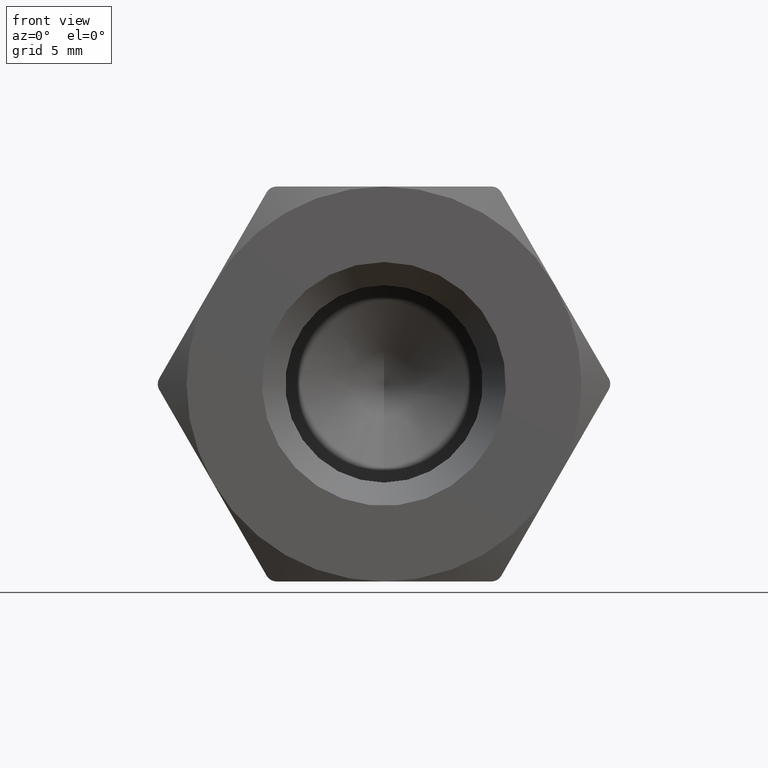
[diagram: clean part render]
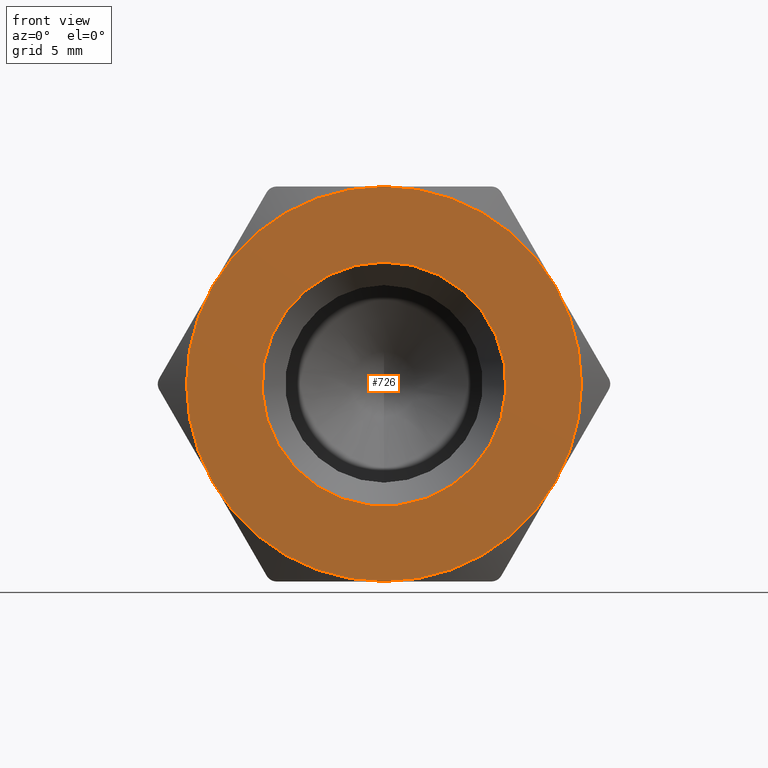
[diagram: same view with one face highlighted and labeled with its STEP entity id]
A machine part, front view. The second image highlights one B-rep face of the part: STEP entity #726.
In plain terms, the highlighted planar face has unit normal (0, 1, 0).
Its self-contained STEP definition (entity closure, byte-faithful):
#33 = CARTESIAN_POINT ( 'NONE',  ( 0.0000000000000000000, 0.0000000000000000000, 0.0000000000000000000 ) ) ;
#44 = CIRCLE ( 'NONE', #457, 8.500000000000000000 ) ;
#65 = CARTESIAN_POINT ( 'NONE',  ( -7.361215932167728400, 0.0000000000000000000, -4.250000000000000000 ) ) ;
#71 = CARTESIAN_POINT ( 'NONE',  ( 0.0000000000000000000, 0.0000000000000000000, 0.0000000000000000000 ) ) ;
#98 = DIRECTION ( 'NONE',  ( 0.0000000000000000000, 1.000000000000000000, 0.0000000000000000000 ) ) ;
#122 = CIRCLE ( 'NONE', #590, 8.500000000000000000 ) ;
#124 = ORIENTED_EDGE ( 'NONE', *, *, #1299, .F. ) ;
#137 = VERTEX_POINT ( 'NONE', #1050 ) ;
#159 = CARTESIAN_POINT ( 'NONE',  ( 0.0000000000000000000, 0.0000000000000000000, 8.500000000000000000 ) ) ;
#172 = DIRECTION ( 'NONE',  ( 0.0000000000000000000, 0.0000000000000000000, 1.000000000000000000 ) ) ;
#183 = FACE_BOUND ( 'NONE', #333, .T. ) ;
#196 = DIRECTION ( 'NONE',  ( 0.0000000000000000000, 0.0000000000000000000, 1.000000000000000000 ) ) ;
#209 = AXIS2_PLACEMENT_3D ( 'NONE', #393, #98, #1056 ) ;
#229 = DIRECTION ( 'NONE',  ( 0.0000000000000000000, 0.0000000000000000000, -1.000000000000000000 ) ) ;
#258 = DIRECTION ( 'NONE',  ( 0.0000000000000000000, 0.0000000000000000000, 1.000000000000000000 ) ) ;
#274 = DIRECTION ( 'NONE',  ( 0.0000000000000000000, 1.000000000000000000, 0.0000000000000000000 ) ) ;
#276 = AXIS2_PLACEMENT_3D ( 'NONE', #837, #641, #1281 ) ;
#305 = AXIS2_PLACEMENT_3D ( 'NONE', #430, #337, #258 ) ;
#333 = EDGE_LOOP ( 'NONE', ( #1143 ) ) ;
#336 = CARTESIAN_POINT ( 'NONE',  ( 0.0000000000000000000, 0.0000000000000000000, 0.0000000000000000000 ) ) ;
#337 = DIRECTION ( 'NONE',  ( 0.0000000000000000000, 1.000000000000000000, 0.0000000000000000000 ) ) ;
#338 = EDGE_CURVE ( 'NONE', #757, #757, #759, .T. ) ;
#349 = DIRECTION ( 'NONE',  ( 0.0000000000000000000, 0.0000000000000000000, 1.000000000000000000 ) ) ;
#366 = VERTEX_POINT ( 'NONE', #159 ) ;
#369 = AXIS2_PLACEMENT_3D ( 'NONE', #900, #372, #172 ) ;
#372 = DIRECTION ( 'NONE',  ( 0.0000000000000000000, 1.000000000000000000, 0.0000000000000000000 ) ) ;
#375 = CIRCLE ( 'NONE', #276, 8.500000000000000000 ) ;
#386 = EDGE_CURVE ( 'NONE', #1230, #447, #122, .T. ) ;
#392 = FACE_OUTER_BOUND ( 'NONE', #1210, .T. ) ;
#393 = CARTESIAN_POINT ( 'NONE',  ( 0.0000000000000000000, 0.0000000000000000000, 0.0000000000000000000 ) ) ;
#430 = CARTESIAN_POINT ( 'NONE',  ( 0.0000000000000000000, 0.0000000000000000000, 0.0000000000000000000 ) ) ;
#447 = VERTEX_POINT ( 'NONE', #1187 ) ;
#457 = AXIS2_PLACEMENT_3D ( 'NONE', #336, #968, #349 ) ;
#486 = DIRECTION ( 'NONE',  ( 0.0000000000000000000, 0.0000000000000000000, 1.000000000000000000 ) ) ;
#508 = ORIENTED_EDGE ( 'NONE', *, *, #813, .F. ) ;
#516 = EDGE_CURVE ( 'NONE', #366, #1128, #572, .T. ) ;
#527 = ORIENTED_EDGE ( 'NONE', *, *, #671, .F. ) ;
#572 = CIRCLE ( 'NONE', #369, 8.500000000000000000 ) ;
#590 = AXIS2_PLACEMENT_3D ( 'NONE', #33, #754, #229 ) ;
#599 = CARTESIAN_POINT ( 'NONE',  ( -3.004629197474318900E-015, 0.0000000000000000000, -8.500000000000000000 ) ) ;
#630 = ORIENTED_EDGE ( 'NONE', *, *, #898, .F. ) ;
#641 = DIRECTION ( 'NONE',  ( 0.0000000000000000000, 1.000000000000000000, 0.0000000000000000000 ) ) ;
#671 = EDGE_CURVE ( 'NONE', #137, #366, #1247, .T. ) ;
#726 = ADVANCED_FACE ( 'NONE', ( #183, #392 ), #1037, .F. ) ;
#754 = DIRECTION ( 'NONE',  ( 0.0000000000000000000, -1.000000000000000000, 0.0000000000000000000 ) ) ;
#757 = VERTEX_POINT ( 'NONE', #947 ) ;
#759 = CIRCLE ( 'NONE', #305, 5.250000000000004400 ) ;
#813 = EDGE_CURVE ( 'NONE', #1162, #137, #375, .T. ) ;
#837 = CARTESIAN_POINT ( 'NONE',  ( 0.0000000000000000000, 0.0000000000000000000, 0.0000000000000000000 ) ) ;
#898 = EDGE_CURVE ( 'NONE', #1230, #1162, #44, .T. ) ;
#900 = CARTESIAN_POINT ( 'NONE',  ( 0.0000000000000000000, 0.0000000000000000000, 0.0000000000000000000 ) ) ;
#947 = CARTESIAN_POINT ( 'NONE',  ( 0.0000000000000000000, 0.0000000000000000000, 5.250000000000004400 ) ) ;
#967 = ORIENTED_EDGE ( 'NONE', *, *, #516, .F. ) ;
#968 = DIRECTION ( 'NONE',  ( 0.0000000000000000000, 1.000000000000000000, 0.0000000000000000000 ) ) ;
#1037 = PLANE ( 'NONE',  #209 ) ;
#1044 = CARTESIAN_POINT ( 'NONE',  ( 0.0000000000000000000, 0.0000000000000000000, 0.0000000000000000000 ) ) ;
#1050 = CARTESIAN_POINT ( 'NONE',  ( -7.361215932167728400, 0.0000000000000000000, 4.250000000000000000 ) ) ;
#1056 = DIRECTION ( 'NONE',  ( 0.0000000000000000000, -0.0000000000000000000, 1.000000000000000000 ) ) ;
#1064 = CIRCLE ( 'NONE', #1177, 8.500000000000000000 ) ;
#1105 = CARTESIAN_POINT ( 'NONE',  ( 7.361215932167728400, 0.0000000000000000000, 4.250000000000000000 ) ) ;
#1128 = VERTEX_POINT ( 'NONE', #1105 ) ;
#1143 = ORIENTED_EDGE ( 'NONE', *, *, #338, .T. ) ;
#1149 = DIRECTION ( 'NONE',  ( 0.0000000000000000000, 1.000000000000000000, 0.0000000000000000000 ) ) ;
#1162 = VERTEX_POINT ( 'NONE', #65 ) ;
#1177 = AXIS2_PLACEMENT_3D ( 'NONE', #71, #274, #486 ) ;
#1187 = CARTESIAN_POINT ( 'NONE',  ( 7.361215932167728400, 0.0000000000000000000, -4.250000000000001800 ) ) ;
#1210 = EDGE_LOOP ( 'NONE', ( #967, #527, #508, #630, #1253, #124 ) ) ;
#1230 = VERTEX_POINT ( 'NONE', #599 ) ;
#1247 = CIRCLE ( 'NONE', #1282, 8.500000000000000000 ) ;
#1253 = ORIENTED_EDGE ( 'NONE', *, *, #386, .T. ) ;
#1281 = DIRECTION ( 'NONE',  ( 0.0000000000000000000, 0.0000000000000000000, 1.000000000000000000 ) ) ;
#1282 = AXIS2_PLACEMENT_3D ( 'NONE', #1044, #1149, #196 ) ;
#1299 = EDGE_CURVE ( 'NONE', #1128, #447, #1064, .T. ) ;